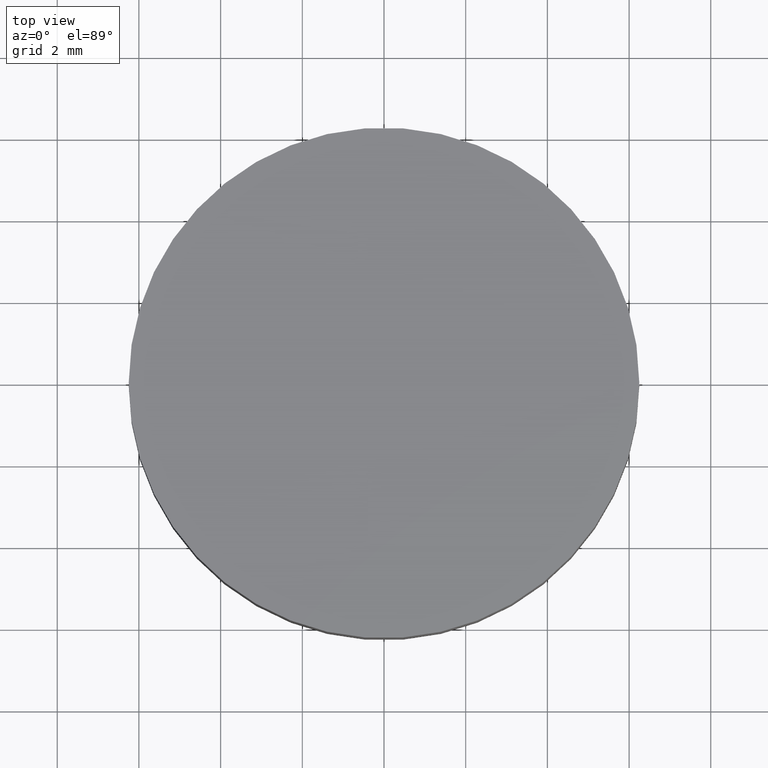
[diagram: clean part render]
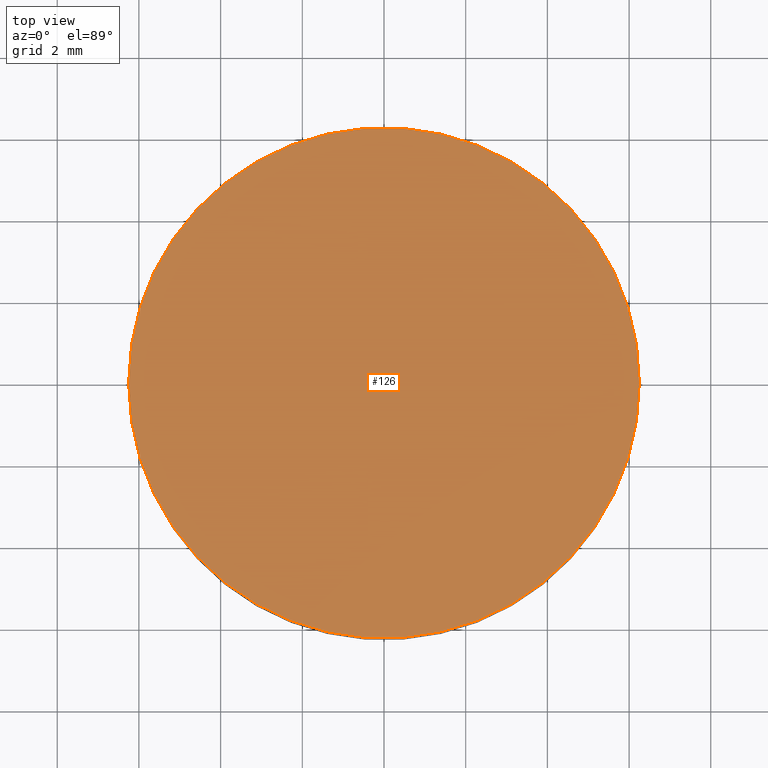
[diagram: same view with one face highlighted and labeled with its STEP entity id]
A machine part, top view. The second image highlights one B-rep face of the part: STEP entity #126.
In plain terms, the highlighted planar face has unit normal (0, 0, 1).
Its self-contained STEP definition (entity closure, byte-faithful):
#3 = FACE_OUTER_BOUND ( 'NONE', #38, .T. ) ;
#7 = CIRCLE ( 'NONE', #58, 6.250000000000000000 ) ;
#17 = DIRECTION ( 'NONE',  ( 1.000000000000000000, 0.0000000000000000000, -0.0000000000000000000 ) ) ;
#25 = DIRECTION ( 'NONE',  ( 0.0000000000000000000, 0.0000000000000000000, 1.000000000000000000 ) ) ;
#29 = AXIS2_PLACEMENT_3D ( 'NONE', #123, #42, #113 ) ;
#38 = EDGE_LOOP ( 'NONE', ( #140, #71 ) ) ;
#42 = DIRECTION ( 'NONE',  ( 0.0000000000000000000, 0.0000000000000000000, 1.000000000000000000 ) ) ;
#44 = CARTESIAN_POINT ( 'NONE',  ( 6.250000000000000000, 7.654042494670957600E-016, 3.000000000000000000 ) ) ;
#48 = VERTEX_POINT ( 'NONE', #44 ) ;
#50 = AXIS2_PLACEMENT_3D ( 'NONE', #124, #90, #17 ) ;
#54 = CARTESIAN_POINT ( 'NONE',  ( -6.250000000000000000, 0.0000000000000000000, 3.000000000000000000 ) ) ;
#58 = AXIS2_PLACEMENT_3D ( 'NONE', #103, #25, #91 ) ;
#65 = PLANE ( 'NONE',  #50 ) ;
#71 = ORIENTED_EDGE ( 'NONE', *, *, #127, .T. ) ;
#74 = EDGE_CURVE ( 'NONE', #109, #48, #7, .T. ) ;
#90 = DIRECTION ( 'NONE',  ( 0.0000000000000000000, 0.0000000000000000000, 1.000000000000000000 ) ) ;
#91 = DIRECTION ( 'NONE',  ( 1.000000000000000000, 0.0000000000000000000, 0.0000000000000000000 ) ) ;
#103 = CARTESIAN_POINT ( 'NONE',  ( 0.0000000000000000000, 0.0000000000000000000, 3.000000000000000000 ) ) ;
#109 = VERTEX_POINT ( 'NONE', #54 ) ;
#113 = DIRECTION ( 'NONE',  ( 1.000000000000000000, 0.0000000000000000000, 0.0000000000000000000 ) ) ;
#117 = CIRCLE ( 'NONE', #29, 6.250000000000000000 ) ;
#123 = CARTESIAN_POINT ( 'NONE',  ( 0.0000000000000000000, 0.0000000000000000000, 3.000000000000000000 ) ) ;
#124 = CARTESIAN_POINT ( 'NONE',  ( 0.0000000000000000000, 0.0000000000000000000, 3.000000000000000000 ) ) ;
#126 = ADVANCED_FACE ( 'NONE', ( #3 ), #65, .T. ) ;
#127 = EDGE_CURVE ( 'NONE', #48, #109, #117, .T. ) ;
#140 = ORIENTED_EDGE ( 'NONE', *, *, #74, .T. ) ;